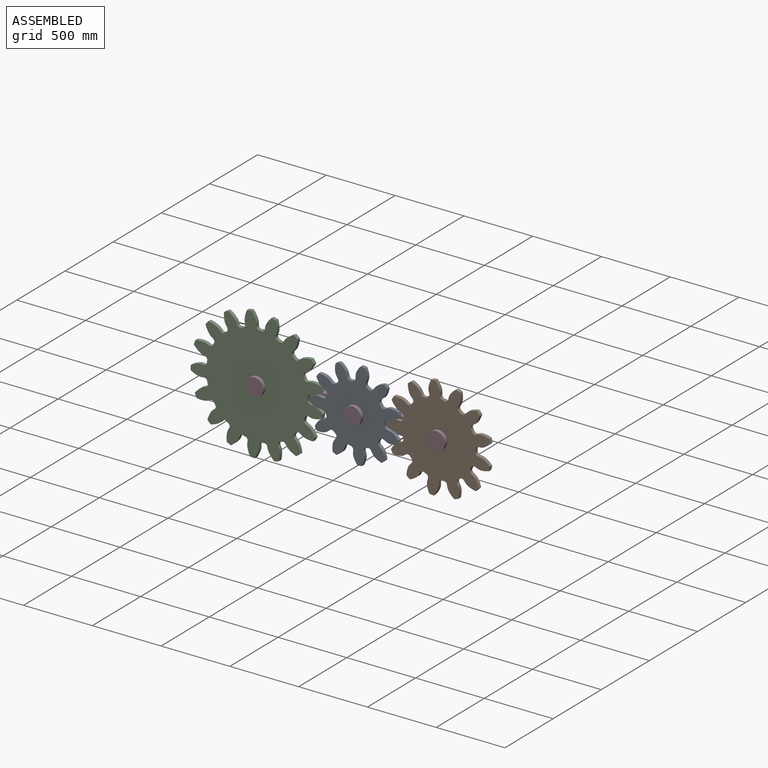
[diagram: assembled view]
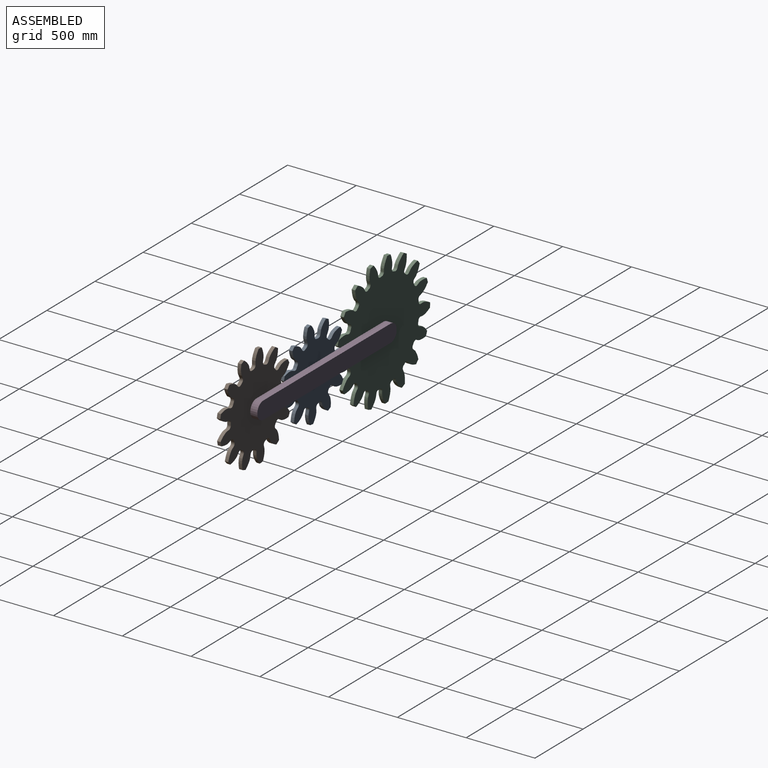
[diagram: assembled view, second angle]
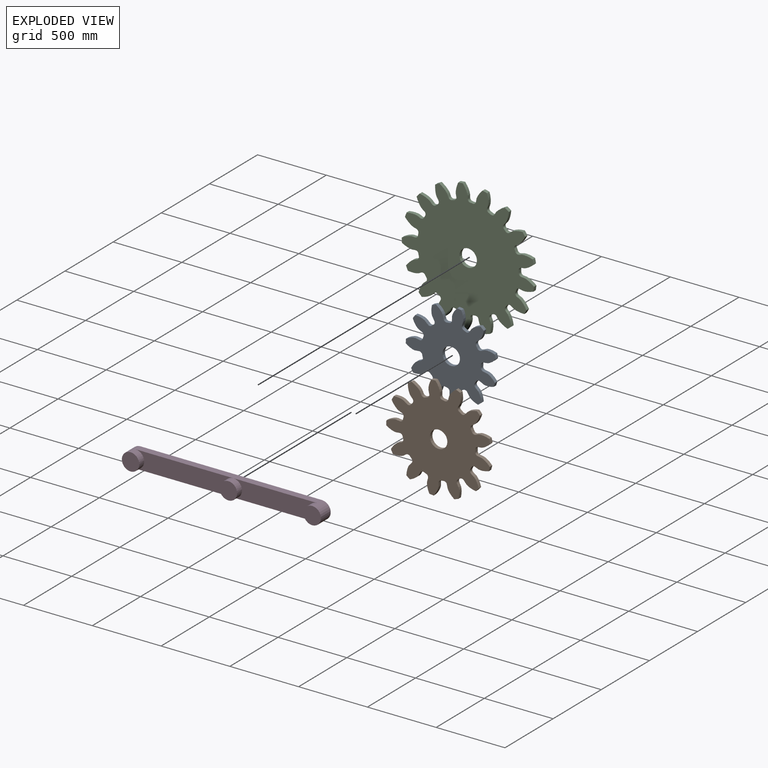
[diagram: exploded view]
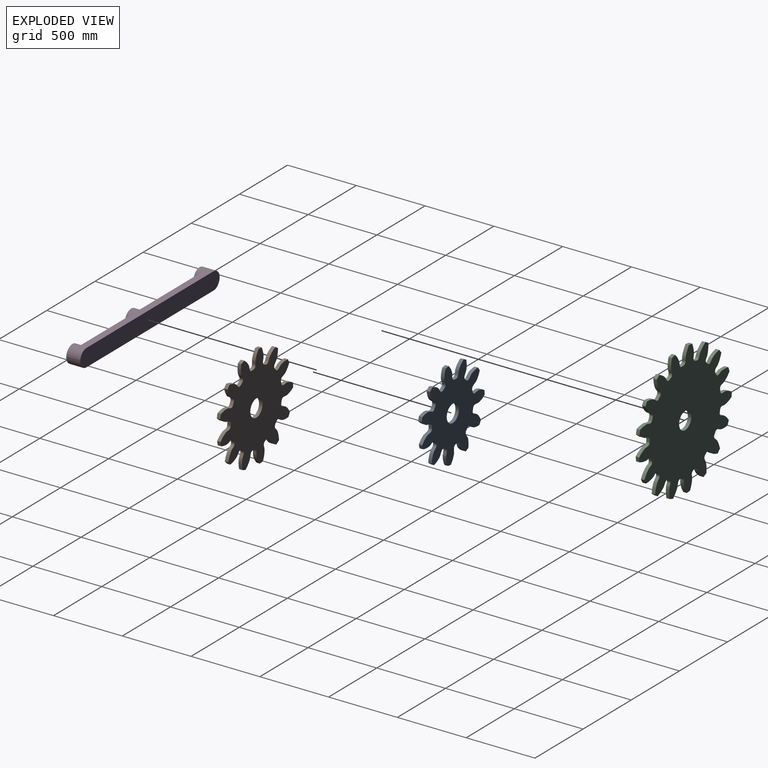
[diagram: exploded view, second angle]
ASSEMBLY  parts=4 mates=3
PART A: 69 faces, bbox 652.5x25.4x659.2 mm
  f0: cylinder r=330.2mm len=25.84mm, axis (0,1,0), area 780.6mm2, adj f10,f13,f44,f66
  f1: cylinder r=330.2mm len=30.72mm, axis (0,1,0), area 780.6mm2, adj f10,f13,f61,f64
  f2: cylinder r=330.2mm len=25.84mm, axis (0,1,0), area 780.6mm2, adj f10,f13,f56,f59
  f3: cylinder r=330.2mm len=27.94mm, axis (0,1,0), area 780.6mm2, adj f10,f13,f51,f54
  f4: cylinder r=330.2mm len=27.94mm, axis (0,1,0), area 780.6mm2, adj f10,f13,f39,f46
  f5: cylinder r=330.2mm len=30.41mm, axis (0,1,0), area 780.6mm2, adj f10,f13,f29,f41
  f6: cylinder r=330.2mm len=29.48mm, axis (0,1,0), area 780.6mm2, adj f10,f13,f14,f36
  f7: cylinder r=330.2mm len=25.4mm, axis (0,1,0), area 780.6mm2, adj f10,f13,f31,f34
  f8: cylinder r=330.2mm len=25.4mm, axis (0,1,0), area 780.6mm2, adj f10,f13,f19,f26
  f9: cylinder r=330.2mm len=30.41mm, axis (0,1,0), area 780.6mm2, adj f10,f13,f21,f49
  f10: plane 659.2x652.5mm, normal (0,-1,0), area 222777.2mm2, adj f0,f1,f2,f3,f4,f5,f6,f7
  f11: cylinder r=63.5mm len=127mm, axis (0,1,0), area 10134.1mm2, adj f10,f13
  f12: cylinder r=330.2mm len=29.48mm, axis (0,1,0), area 780.6mm2, adj f10,f13,f16,f24
  f13: plane 659.2x652.5mm, normal (0,1,0), area 222777.2mm2, adj f0,f1,f2,f3,f4,f5,f6,f7
  f14: extruded ~86.73x48.14mm, area 2605.5mm2, adj f6,f10,f13,f17
  f15: cylinder r=215.9mm len=25.4mm, axis (0,1,0), area 427.2mm2, adj f10,f13,f17,f18
  f16: extruded ~86.73x48.14mm, area 2605.5mm2, adj f10,f12,f13,f18
  f17: cylinder r=20.99mm len=25.4mm, axis (0,1,0), area 791.2mm2, adj f10,f13,f14,f15
  f18: cylinder r=20.99mm len=25.4mm, axis (0,1,0), area 791.2mm2, adj f10,f13,f15,f16
  f19: extruded ~79.82x58.9mm, area 2605.5mm2, adj f8,f10,f13,f22
  f20: cylinder r=215.9mm len=25.4mm, axis (0,1,0), area 427.2mm2, adj f10,f13,f22,f23
  f21: extruded ~98.89x25.4mm, area 2605.5mm2, adj f9,f10,f13,f23
  f22: cylinder r=20.99mm len=27.31mm, axis (0,1,0), area 791.2mm2, adj f10,f13,f19,f20
  f23: cylinder r=20.99mm len=25.68mm, axis (0,1,0), area 791.2mm2, adj f10,f13,f20,f21
  f24: extruded ~98.99x25.4mm, area 2605.5mm2, adj f10,f12,f13,f27
  f25: cylinder r=215.9mm len=25.4mm, axis (0,1,0), area 427.2mm2, adj f10,f13,f27,f28
  f26: extruded ~87.39x46.94mm, area 2605.5mm2, adj f8,f10,f13,f28
  f27: cylinder r=20.99mm len=27.13mm, axis (0,1,0), area 791.2mm2, adj f10,f13,f24,f25
  f28: cylinder r=20.99mm len=28.13mm, axis (0,1,0), area 791.2mm2, adj f10,f13,f25,f26
  f29: extruded ~98.89x25.4mm, area 2605.5mm2, adj f5,f10,f13,f32
  f30: cylinder r=215.9mm len=25.4mm, axis (0,1,0), area 427.2mm2, adj f10,f13,f32,f33
  f31: extruded ~79.82x58.9mm, area 2605.5mm2, adj f7,f10,f13,f33
  f32: cylinder r=20.99mm len=25.68mm, axis (0,1,0), area 791.2mm2, adj f10,f13,f29,f30
  f33: cylinder r=20.99mm len=27.31mm, axis (0,1,0), area 791.2mm2, adj f10,f13,f30,f31
  f34: extruded ~87.39x46.94mm, area 2605.5mm2, adj f7,f10,f13,f37
  f35: cylinder r=215.9mm len=25.4mm, axis (0,1,0), area 427.2mm2, adj f10,f13,f37,f38
  f36: extruded ~98.99x25.4mm, area 2605.5mm2, adj f6,f10,f13,f38
  f37: cylinder r=20.99mm len=28.13mm, axis (0,1,0), area 791.2mm2, adj f10,f13,f34,f35
  f38: cylinder r=20.99mm len=27.13mm, axis (0,1,0), area 791.2mm2, adj f10,f13,f35,f36
  f39: extruded ~79x59.99mm, area 2605.5mm2, adj f4,f10,f13,f42
  f40: cylinder r=215.9mm len=25.4mm, axis (0,1,0), area 427.2mm2, adj f10,f13,f42,f43
  f41: extruded ~92.7x35.65mm, area 2605.5mm2, adj f5,f10,f13,f43
  f42: cylinder r=20.99mm len=25.4mm, axis (0,1,0), area 791.2mm2, adj f10,f13,f39,f40
  f43: cylinder r=20.99mm len=25.4mm, axis (0,1,0), area 791.2mm2, adj f10,f13,f40,f41
  f44: extruded ~93.18x34.16mm, area 2605.5mm2, adj f0,f10,f13,f47
  f45: cylinder r=215.9mm len=25.4mm, axis (0,1,0), area 427.2mm2, adj f10,f13,f47,f48
  f46: extruded ~97.07x25.4mm, area 2605.5mm2, adj f4,f10,f13,f48
  f47: cylinder r=20.99mm len=28.37mm, axis (0,1,0), area 791.2mm2, adj f10,f13,f44,f45
  f48: cylinder r=20.99mm len=28.04mm, axis (0,1,0), area 791.2mm2, adj f10,f13,f45,f46
  f49: extruded ~92.7x35.65mm, area 2605.5mm2, adj f9,f10,f13,f52
  f50: cylinder r=215.9mm len=25.4mm, axis (0,1,0), area 427.2mm2, adj f10,f13,f52,f53
  f51: extruded ~79x59.99mm, area 2605.5mm2, adj f3,f10,f13,f53
  f52: cylinder r=20.99mm len=25.4mm, axis (0,1,0), area 791.2mm2, adj f10,f13,f49,f50
  f53: cylinder r=20.99mm len=25.4mm, axis (0,1,0), area 791.2mm2, adj f10,f13,f50,f51
  f54: extruded ~97.07x25.4mm, area 2605.5mm2, adj f3,f10,f13,f57
  f55: cylinder r=215.9mm len=25.4mm, axis (0,1,0), area 427.2mm2, adj f10,f13,f57,f58
  f56: extruded ~93.18x34.16mm, area 2605.5mm2, adj f2,f10,f13,f58
  f57: cylinder r=20.99mm len=28.04mm, axis (0,1,0), area 791.2mm2, adj f10,f13,f54,f55
  f58: cylinder r=20.99mm len=28.37mm, axis (0,1,0), area 791.2mm2, adj f10,f13,f55,f56
  f59: extruded ~70.62x69.66mm, area 2605.5mm2, adj f2,f10,f13,f62
  f60: cylinder r=215.9mm len=25.4mm, axis (0,1,0), area 427.2mm2, adj f10,f13,f62,f63
  f61: extruded ~96.78x26.04mm, area 2605.5mm2, adj f1,f10,f13,f63
  f62: cylinder r=20.99mm len=25.94mm, axis (0,1,0), area 791.2mm2, adj f10,f13,f59,f60
  f63: cylinder r=20.99mm len=25.4mm, axis (0,1,0), area 791.2mm2, adj f10,f13,f60,f61
  f64: extruded ~96.78x26.04mm, area 2605.5mm2, adj f1,f10,f13,f67
  f65: cylinder r=215.9mm len=25.4mm, axis (0,1,0), area 427.2mm2, adj f10,f13,f67,f68
  f66: extruded ~70.62x69.66mm, area 2605.5mm2, adj f0,f10,f13,f68
  f67: cylinder r=20.99mm len=25.4mm, axis (0,1,0), area 791.2mm2, adj f10,f13,f64,f65
  f68: cylinder r=20.99mm len=25.94mm, axis (0,1,0), area 791.2mm2, adj f10,f13,f65,f66
PART B: 81 faces, bbox 755.7x25.4x761.2 mm
  f0: cylinder r=381mm len=32.18mm, axis (0,1,0), area 817.5mm2, adj f12,f15,f61,f78
  f1: cylinder r=381mm len=28.49mm, axis (0,1,0), area 817.5mm2, adj f12,f15,f73,f76
  f2: cylinder r=381mm len=26.48mm, axis (0,1,0), area 817.5mm2, adj f12,f15,f56,f68
  f3: cylinder r=381mm len=28.49mm, axis (0,1,0), area 817.5mm2, adj f12,f15,f63,f66
  f4: cylinder r=381mm len=31.94mm, axis (0,1,0), area 817.5mm2, adj f12,f15,f51,f58
  f5: cylinder r=381mm len=30.09mm, axis (0,1,0), area 817.5mm2, adj f12,f15,f41,f53
  f6: cylinder r=381mm len=31.24mm, axis (0,1,0), area 817.5mm2, adj f12,f15,f16,f48
  f7: cylinder r=381mm len=25.4mm, axis (0,1,0), area 817.5mm2, adj f12,f15,f43,f46
  f8: cylinder r=381mm len=26.48mm, axis (0,1,0), area 817.5mm2, adj f12,f15,f38,f71
  f9: cylinder r=381mm len=31.94mm, axis (0,1,0), area 817.5mm2, adj f12,f15,f33,f36
  f10: cylinder r=381mm len=25.4mm, axis (0,1,0), area 817.5mm2, adj f12,f15,f21,f28
  f11: cylinder r=381mm len=30.09mm, axis (0,1,0), area 817.5mm2, adj f12,f15,f23,f31
  f12: plane 761.19x755.66mm, normal (0,-1,0), area 318257.3mm2, adj f0,f1,f2,f3,f4,f5,f6,f7
  f13: cylinder r=63.5mm len=127mm, axis (0,1,0), area 10134.1mm2, adj f12,f15
  f14: cylinder r=381mm len=31.24mm, axis (0,1,0), area 817.5mm2, adj f12,f15,f18,f26
  f15: plane 761.19x755.66mm, normal (0,1,0), area 318257.3mm2, adj f0,f1,f2,f3,f4,f5,f6,f7
  f16: extruded ~88.11x45.19mm, area 2592.8mm2, adj f6,f12,f15,f19
  f17: cylinder r=266.7mm len=25.4mm, axis (0,1,0), area 444mm2, adj f12,f15,f19,f20
  f18: extruded ~88.11x45.19mm, area 2592.8mm2, adj f12,f14,f15,f20
  f19: cylinder r=20.97mm len=25.4mm, axis (0,1,0), area 798.8mm2, adj f12,f15,f16,f17
  f20: cylinder r=20.97mm len=25.4mm, axis (0,1,0), area 798.8mm2, adj f12,f15,f17,f18
  f21: extruded ~87.24x46.84mm, area 2592.8mm2, adj f10,f12,f15,f24
  f22: cylinder r=266.7mm len=25.4mm, axis (0,1,0), area 444mm2, adj f12,f15,f24,f25
  f23: extruded ~98.18x25.4mm, area 2592.8mm2, adj f11,f12,f15,f25
  f24: cylinder r=20.97mm len=28.4mm, axis (0,1,0), area 798.8mm2, adj f12,f15,f21,f22
  f25: cylinder r=20.97mm len=27.7mm, axis (0,1,0), area 798.8mm2, adj f12,f15,f22,f23
  f26: extruded ~99.02x25.4mm, area 2592.8mm2, adj f12,f14,f15,f29
  f27: cylinder r=266.7mm len=25.4mm, axis (0,1,0), area 444mm2, adj f12,f15,f29,f30
  f28: extruded ~80.96x57.01mm, area 2592.8mm2, adj f10,f12,f15,f30
  f29: cylinder r=20.97mm len=26.65mm, axis (0,1,0), area 798.8mm2, adj f12,f15,f26,f27
  f30: cylinder r=20.97mm len=27.81mm, axis (0,1,0), area 798.8mm2, adj f12,f15,f27,f28
  f31: extruded ~82.02x55.48mm, area 2592.8mm2, adj f11,f12,f15,f34
  f32: cylinder r=266.7mm len=25.4mm, axis (0,1,0), area 444mm2, adj f12,f15,f34,f35
  f33: extruded ~92.91x34.54mm, area 2592.8mm2, adj f9,f12,f15,f35
  f34: cylinder r=20.97mm len=25.4mm, axis (0,1,0), area 798.8mm2, adj f12,f15,f31,f32
  f35: cylinder r=20.97mm len=25.4mm, axis (0,1,0), area 798.8mm2, adj f12,f15,f32,f33
  f36: extruded ~98.41x25.4mm, area 2592.8mm2, adj f9,f12,f15,f39
  f37: cylinder r=266.7mm len=25.4mm, axis (0,1,0), area 444mm2, adj f12,f15,f39,f40
  f38: extruded ~73.5x66.36mm, area 2592.8mm2, adj f8,f12,f15,f40
  f39: cylinder r=20.97mm len=25.4mm, axis (0,1,0), area 798.8mm2, adj f12,f15,f36,f37
  f40: cylinder r=20.97mm len=26.81mm, axis (0,1,0), area 798.8mm2, adj f12,f15,f37,f38
  f41: extruded ~98.18x25.4mm, area 2592.8mm2, adj f5,f12,f15,f44
  f42: cylinder r=266.7mm len=25.4mm, axis (0,1,0), area 444mm2, adj f12,f15,f44,f45
  f43: extruded ~87.24x46.84mm, area 2592.8mm2, adj f7,f12,f15,f45
  f44: cylinder r=20.97mm len=27.7mm, axis (0,1,0), area 798.8mm2, adj f12,f15,f41,f42
  f45: cylinder r=20.97mm len=28.4mm, axis (0,1,0), area 798.8mm2, adj f12,f15,f42,f43
  f46: extruded ~80.96x57.01mm, area 2592.8mm2, adj f7,f12,f15,f49
  f47: cylinder r=266.7mm len=25.4mm, axis (0,1,0), area 444mm2, adj f12,f15,f49,f50
  f48: extruded ~99.02x25.4mm, area 2592.8mm2, adj f6,f12,f15,f50
  f49: cylinder r=20.97mm len=27.81mm, axis (0,1,0), area 798.8mm2, adj f12,f15,f46,f47
  f50: cylinder r=20.97mm len=26.65mm, axis (0,1,0), area 798.8mm2, adj f12,f15,f47,f48
  f51: extruded ~92.91x34.54mm, area 2592.8mm2, adj f4,f12,f15,f54
  f52: cylinder r=266.7mm len=25.4mm, axis (0,1,0), area 444mm2, adj f12,f15,f54,f55
  f53: extruded ~82.02x55.48mm, area 2592.8mm2, adj f5,f12,f15,f55
  f54: cylinder r=20.97mm len=25.4mm, axis (0,1,0), area 798.8mm2, adj f12,f15,f51,f52
  f55: cylinder r=20.97mm len=25.4mm, axis (0,1,0), area 798.8mm2, adj f12,f15,f52,f53
  f56: extruded ~73.5x66.36mm, area 2592.8mm2, adj f2,f12,f15,f59
  f57: cylinder r=266.7mm len=25.4mm, axis (0,1,0), area 444mm2, adj f12,f15,f59,f60
  f58: extruded ~98.41x25.4mm, area 2592.8mm2, adj f4,f12,f15,f60
  f59: cylinder r=20.97mm len=26.81mm, axis (0,1,0), area 798.8mm2, adj f12,f15,f56,f57
  f60: cylinder r=20.97mm len=25.4mm, axis (0,1,0), area 798.8mm2, adj f12,f15,f57,f58
  f61: extruded ~96.36x26.03mm, area 2592.8mm2, adj f0,f12,f15,f64
  f62: cylinder r=266.7mm len=25.4mm, axis (0,1,0), area 444mm2, adj f12,f15,f64,f65
  f63: extruded ~74.73x64.96mm, area 2592.8mm2, adj f3,f12,f15,f65
  f64: cylinder r=20.97mm len=25.4mm, axis (0,1,0), area 798.8mm2, adj f12,f15,f61,f62
  f65: cylinder r=20.97mm len=25.42mm, axis (0,1,0), area 798.8mm2, adj f12,f15,f62,f63
  f66: extruded ~95.92x25.53mm, area 2592.8mm2, adj f3,f12,f15,f69
  f67: cylinder r=266.7mm len=25.4mm, axis (0,1,0), area 444mm2, adj f12,f15,f69,f70
  f68: extruded ~92.25x35.98mm, area 2592.8mm2, adj f2,f12,f15,f70
  f69: cylinder r=20.97mm len=28.35mm, axis (0,1,0), area 798.8mm2, adj f12,f15,f66,f67
  f70: cylinder r=20.97mm len=28.58mm, axis (0,1,0), area 798.8mm2, adj f12,f15,f67,f68
  f71: extruded ~92.25x35.98mm, area 2592.8mm2, adj f8,f12,f15,f74
  f72: cylinder r=266.7mm len=25.4mm, axis (0,1,0), area 444mm2, adj f12,f15,f74,f75
  f73: extruded ~95.92x25.53mm, area 2592.8mm2, adj f1,f12,f15,f75
  f74: cylinder r=20.97mm len=28.58mm, axis (0,1,0), area 798.8mm2, adj f12,f15,f71,f72
  f75: cylinder r=20.97mm len=28.35mm, axis (0,1,0), area 798.8mm2, adj f12,f15,f72,f73
  f76: extruded ~74.73x64.96mm, area 2592.8mm2, adj f1,f12,f15,f79
  f77: cylinder r=266.7mm len=25.4mm, axis (0,1,0), area 444mm2, adj f12,f15,f79,f80
  f78: extruded ~96.36x26.03mm, area 2592.8mm2, adj f0,f12,f15,f80
  f79: cylinder r=20.97mm len=25.42mm, axis (0,1,0), area 798.8mm2, adj f12,f15,f76,f77
  f80: cylinder r=20.97mm len=25.4mm, axis (0,1,0), area 798.8mm2, adj f12,f15,f77,f78
PART C: 105 faces, bbox 960.6x25.4x964.7 mm
  f0: cylinder r=482.6mm len=34.05mm, axis (0,1,0), area 868.7mm2, adj f16,f19,f65,f102
  f1: cylinder r=482.6mm len=32.89mm, axis (0,1,0), area 868.7mm2, adj f16,f19,f97,f100
  f2: cylinder r=482.6mm len=29.07mm, axis (0,1,0), area 868.7mm2, adj f16,f19,f85,f92
  f3: cylinder r=482.6mm len=27.29mm, axis (0,1,0), area 868.7mm2, adj f16,f19,f87,f95
  f4: cylinder r=482.6mm len=34.19mm, axis (0,1,0), area 868.7mm2, adj f16,f19,f45,f82
  f5: cylinder r=482.6mm len=31.88mm, axis (0,1,0), area 868.7mm2, adj f16,f19,f77,f80
  f6: cylinder r=482.6mm len=25.4mm, axis (0,1,0), area 868.7mm2, adj f16,f19,f72,f75
  f7: cylinder r=482.6mm len=30.61mm, axis (0,1,0), area 868.7mm2, adj f16,f19,f67,f70
  f8: cylinder r=482.6mm len=34.05mm, axis (0,1,0), area 868.7mm2, adj f16,f19,f25,f62
  f9: cylinder r=482.6mm len=30.61mm, axis (0,1,0), area 868.7mm2, adj f16,f19,f57,f60
  f10: cylinder r=482.6mm len=25.4mm, axis (0,1,0), area 868.7mm2, adj f16,f19,f52,f55
  f11: cylinder r=482.6mm len=31.88mm, axis (0,1,0), area 868.7mm2, adj f16,f19,f47,f50
  f12: cylinder r=482.6mm len=29.07mm, axis (0,1,0), area 868.7mm2, adj f16,f19,f35,f42
  f13: cylinder r=482.6mm len=33.61mm, axis (0,1,0), area 868.7mm2, adj f16,f19,f20,f37
  f14: cylinder r=482.6mm len=27.29mm, axis (0,1,0), area 868.7mm2, adj f16,f19,f32,f40
  f15: cylinder r=482.6mm len=32.89mm, axis (0,1,0), area 868.7mm2, adj f16,f19,f27,f30
  f16: plane 964.66x960.55mm, normal (0,-1,0), area 558479.8mm2, adj f0,f1,f2,f3,f4,f5,f6,f7
  f17: cylinder r=63.5mm len=127mm, axis (0,1,0), area 10134.1mm2, adj f16,f19
  f18: cylinder r=482.6mm len=33.61mm, axis (0,1,0), area 868.7mm2, adj f16,f19,f22,f90
  f19: plane 964.66x960.55mm, normal (0,1,0), area 558479.8mm2, adj f0,f1,f2,f3,f4,f5,f6,f7
  f20: extruded ~90.04x41.81mm, area 2586.1mm2, adj f13,f16,f19,f23
  f21: cylinder r=368.3mm len=25.4mm, axis (0,1,0), area 457.4mm2, adj f16,f19,f23,f24
  f22: extruded ~90.04x41.81mm, area 2586.1mm2, adj f16,f18,f19,f24
  f23: cylinder r=20.56mm len=25.4mm, axis (0,1,0), area 793.5mm2, adj f16,f19,f20,f21
  f24: cylinder r=20.56mm len=25.4mm, axis (0,1,0), area 793.5mm2, adj f16,f19,f21,f22
  f25: extruded ~93.51x33.53mm, area 2586.1mm2, adj f8,f16,f19,f28
  f26: cylinder r=368.3mm len=25.4mm, axis (0,1,0), area 457.4mm2, adj f16,f19,f28,f29
  f27: extruded ~85.8x49.94mm, area 2586.1mm2, adj f15,f16,f19,f29
  f28: cylinder r=20.56mm len=25.4mm, axis (0,1,0), area 793.5mm2, adj f16,f19,f25,f26
  f29: cylinder r=20.56mm len=25.4mm, axis (0,1,0), area 793.5mm2, adj f16,f19,f26,f27
  f30: extruded ~99.24x25.4mm, area 2586.1mm2, adj f15,f16,f19,f33
  f31: cylinder r=368.3mm len=25.4mm, axis (0,1,0), area 457.4mm2, adj f16,f19,f33,f34
  f32: extruded ~77.56x61.96mm, area 2586.1mm2, adj f14,f16,f19,f34
  f33: cylinder r=20.56mm len=26.37mm, axis (0,1,0), area 793.5mm2, adj f16,f19,f30,f31
  f34: cylinder r=20.56mm len=27.27mm, axis (0,1,0), area 793.5mm2, adj f16,f19,f31,f32
  f35: extruded ~71.51x68.86mm, area 2586.1mm2, adj f12,f16,f19,f38
  f36: cylinder r=368.3mm len=25.4mm, axis (0,1,0), area 457.4mm2, adj f16,f19,f38,f39
  f37: extruded ~99.06x25.4mm, area 2586.1mm2, adj f13,f16,f19,f39
  f38: cylinder r=20.56mm len=26.45mm, axis (0,1,0), area 793.5mm2, adj f16,f19,f35,f36
  f39: cylinder r=20.56mm len=25.4mm, axis (0,1,0), area 793.5mm2, adj f16,f19,f36,f37
  f40: extruded ~91.56x38.37mm, area 2586.1mm2, adj f14,f16,f19,f43
  f41: cylinder r=368.3mm len=25.4mm, axis (0,1,0), area 457.4mm2, adj f16,f19,f43,f44
  f42: extruded ~94.71x29.76mm, area 2586.1mm2, adj f12,f16,f19,f44
  f43: cylinder r=20.56mm len=28.32mm, axis (0,1,0), area 793.5mm2, adj f16,f19,f40,f41
  f44: cylinder r=20.56mm len=28.19mm, axis (0,1,0), area 793.5mm2, adj f16,f19,f41,f42
  f45: extruded ~96.19x26.44mm, area 2586.1mm2, adj f4,f16,f19,f48
  f46: cylinder r=368.3mm len=25.4mm, axis (0,1,0), area 457.4mm2, adj f16,f19,f48,f49
  f47: extruded ~80.82x57.64mm, area 2586.1mm2, adj f11,f16,f19,f49
  f48: cylinder r=20.56mm len=25.4mm, axis (0,1,0), area 793.5mm2, adj f16,f19,f45,f46
  f49: cylinder r=20.56mm len=25.4mm, axis (0,1,0), area 793.5mm2, adj f16,f19,f46,f47
  f50: extruded ~98.56x25.4mm, area 2586.1mm2, adj f11,f16,f19,f53
  f51: cylinder r=368.3mm len=25.4mm, axis (0,1,0), area 457.4mm2, adj f16,f19,f53,f54
  f52: extruded ~82.95x54.54mm, area 2586.1mm2, adj f10,f16,f19,f54
  f53: cylinder r=20.56mm len=27.21mm, axis (0,1,0), area 793.5mm2, adj f16,f19,f50,f51
  f54: cylinder r=20.56mm len=27.86mm, axis (0,1,0), area 793.5mm2, adj f16,f19,f51,f52
  f55: extruded ~87.63x46.66mm, area 2586.1mm2, adj f10,f16,f19,f58
  f56: cylinder r=368.3mm len=25.4mm, axis (0,1,0), area 457.4mm2, adj f16,f19,f58,f59
  f57: extruded ~97.05x25.4mm, area 2586.1mm2, adj f9,f16,f19,f59
  f58: cylinder r=20.56mm len=28.21mm, axis (0,1,0), area 793.5mm2, adj f16,f19,f55,f56
  f59: cylinder r=20.56mm len=27.82mm, axis (0,1,0), area 793.5mm2, adj f16,f19,f56,f57
  f60: extruded ~75.16x64.85mm, area 2586.1mm2, adj f9,f16,f19,f63
  f61: cylinder r=368.3mm len=25.4mm, axis (0,1,0), area 457.4mm2, adj f16,f19,f63,f64
  f62: extruded ~98.04x25.4mm, area 2586.1mm2, adj f8,f16,f19,f64
  f63: cylinder r=20.56mm len=25.4mm, axis (0,1,0), area 793.5mm2, adj f16,f19,f60,f61
  f64: cylinder r=20.56mm len=25.4mm, axis (0,1,0), area 793.5mm2, adj f16,f19,f61,f62
  f65: extruded ~98.04x25.4mm, area 2586.1mm2, adj f0,f16,f19,f68
  f66: cylinder r=368.3mm len=25.4mm, axis (0,1,0), area 457.4mm2, adj f16,f19,f68,f69
  f67: extruded ~75.16x64.85mm, area 2586.1mm2, adj f7,f16,f19,f69
  f68: cylinder r=20.56mm len=25.4mm, axis (0,1,0), area 793.5mm2, adj f16,f19,f65,f66
  f69: cylinder r=20.56mm len=25.4mm, axis (0,1,0), area 793.5mm2, adj f16,f19,f66,f67
  f70: extruded ~97.05x25.4mm, area 2586.1mm2, adj f7,f16,f19,f73
  f71: cylinder r=368.3mm len=25.4mm, axis (0,1,0), area 457.4mm2, adj f16,f19,f73,f74
  f72: extruded ~87.63x46.66mm, area 2586.1mm2, adj f6,f16,f19,f74
  f73: cylinder r=20.56mm len=27.82mm, axis (0,1,0), area 793.5mm2, adj f16,f19,f70,f71
  f74: cylinder r=20.56mm len=28.21mm, axis (0,1,0), area 793.5mm2, adj f16,f19,f71,f72
  f75: extruded ~82.95x54.54mm, area 2586.1mm2, adj f6,f16,f19,f78
  f76: cylinder r=368.3mm len=25.4mm, axis (0,1,0), area 457.4mm2, adj f16,f19,f78,f79
  f77: extruded ~98.56x25.4mm, area 2586.1mm2, adj f5,f16,f19,f79
  f78: cylinder r=20.56mm len=27.86mm, axis (0,1,0), area 793.5mm2, adj f16,f19,f75,f76
  f79: cylinder r=20.56mm len=27.21mm, axis (0,1,0), area 793.5mm2, adj f16,f19,f76,f77
  f80: extruded ~80.82x57.64mm, area 2586.1mm2, adj f5,f16,f19,f83
  f81: cylinder r=368.3mm len=25.4mm, axis (0,1,0), area 457.4mm2, adj f16,f19,f83,f84
  f82: extruded ~96.19x26.44mm, area 2586.1mm2, adj f4,f16,f19,f84
  f83: cylinder r=20.56mm len=25.4mm, axis (0,1,0), area 793.5mm2, adj f16,f19,f80,f81
  f84: cylinder r=20.56mm len=25.4mm, axis (0,1,0), area 793.5mm2, adj f16,f19,f81,f82
  f85: extruded ~94.71x29.76mm, area 2586.1mm2, adj f2,f16,f19,f88
  f86: cylinder r=368.3mm len=25.4mm, axis (0,1,0), area 457.4mm2, adj f16,f19,f88,f89
  f87: extruded ~91.56x38.37mm, area 2586.1mm2, adj f3,f16,f19,f89
  f88: cylinder r=20.56mm len=28.19mm, axis (0,1,0), area 793.5mm2, adj f16,f19,f85,f86
  f89: cylinder r=20.56mm len=28.32mm, axis (0,1,0), area 793.5mm2, adj f16,f19,f86,f87
  f90: extruded ~99.06x25.4mm, area 2586.1mm2, adj f16,f18,f19,f93
  f91: cylinder r=368.3mm len=25.4mm, axis (0,1,0), area 457.4mm2, adj f16,f19,f93,f94
  f92: extruded ~71.51x68.86mm, area 2586.1mm2, adj f2,f16,f19,f94
  f93: cylinder r=20.56mm len=25.4mm, axis (0,1,0), area 793.5mm2, adj f16,f19,f90,f91
  f94: cylinder r=20.56mm len=26.45mm, axis (0,1,0), area 793.5mm2, adj f16,f19,f91,f92
  f95: extruded ~77.56x61.96mm, area 2586.1mm2, adj f3,f16,f19,f98
  f96: cylinder r=368.3mm len=25.4mm, axis (0,1,0), area 457.4mm2, adj f16,f19,f98,f99
  f97: extruded ~99.24x25.4mm, area 2586.1mm2, adj f1,f16,f19,f99
  f98: cylinder r=20.56mm len=27.27mm, axis (0,1,0), area 793.5mm2, adj f16,f19,f95,f96
  f99: cylinder r=20.56mm len=26.37mm, axis (0,1,0), area 793.5mm2, adj f16,f19,f96,f97
  f100: extruded ~85.8x49.94mm, area 2586.1mm2, adj f1,f16,f19,f103
  f101: cylinder r=368.3mm len=25.4mm, axis (0,1,0), area 457.4mm2, adj f16,f19,f103,f104
  f102: extruded ~93.51x33.53mm, area 2586.1mm2, adj f0,f16,f19,f104
  f103: cylinder r=20.56mm len=25.4mm, axis (0,1,0), area 793.5mm2, adj f16,f19,f100,f101
  f104: cylinder r=20.56mm len=25.4mm, axis (0,1,0), area 793.5mm2, adj f16,f19,f101,f102
PART D: 11 faces, bbox 1447.8x101.6x127 mm
  f0: plane 711.2x127mm, normal (0,-1,0), area 77654.7mm2, adj f1,f2,f3,f9
  f1: plane 1320.8x50.8mm, normal (0,0,1), area 67096.6mm2, adj f0,f2,f4,f5,f6
  f2: cylinder r=63.5mm len=127mm, axis (0,1,0), area 30402.4mm2, adj f0,f1,f3,f6,f7
  f3: plane 1320.8x50.8mm, normal (0,0,-1), area 67096.6mm2, adj f0,f2,f4,f5,f6
  f4: cylinder r=63.5mm len=127mm, axis (0,1,0), area 30402.4mm2, adj f1,f3,f5,f6,f8
  f5: plane 609.6x127mm, normal (0,-1,0), area 64751.5mm2, adj f1,f3,f4,f9
  f6: plane 1447.8x127mm, normal (0,1,0), area 180409.3mm2, adj f1,f2,f3,f4
  f7: plane 127x127mm, normal (0,-1,0), area 12667.7mm2, adj f2
  f8: plane 127x127mm, normal (0,-1,0), area 12667.7mm2, adj f4
  f9: cylinder r=63.5mm len=127mm, axis (0,1,0), area 20268.3mm2, adj f0,f5,f10
  f10: plane 127x127mm, normal (0,-1,0), area 12667.7mm2, adj f9
PLACE A rot(axis=(0,-1,0),161.6deg) t=(711.2,-50.8,-63.5)mm
PLACE B rot(axis=(0,1,0),111.7deg) t=(1320.8,-50.8,-63.5)mm
PLACE C rot(axis=(0,1,0),104.5deg) t=(0,-50.8,-63.5)mm
PLACE D t=(0,0,-127)mm
MATE revolute C.f0 <-> D.f2  axis (0,1,0) through (0,-50.8,-63.5)mm
MATE revolute B.f0 <-> D.f4  axis (0,1,0) through (1320.8,-50.8,-63.5)mm
MATE revolute A.f0 <-> D.f9  axis (0,1,0) through (711.2,-50.8,-63.5)mm
